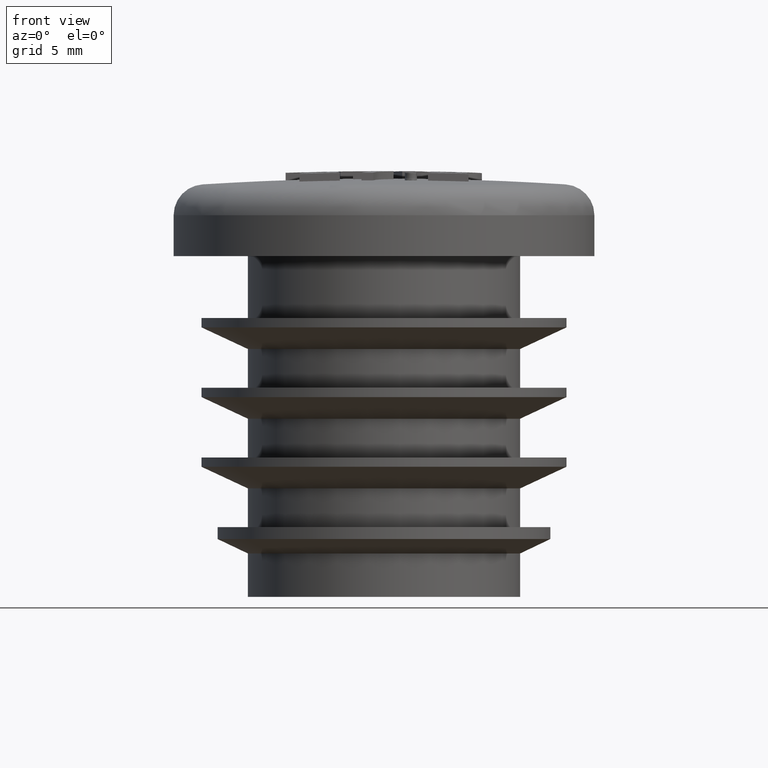
[diagram: clean part render]
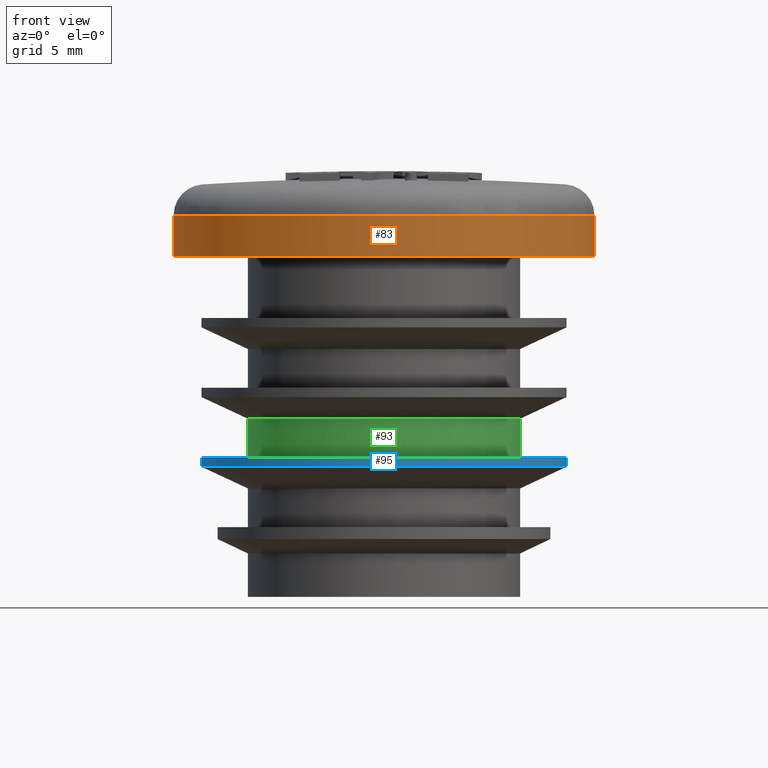
[diagram: same view with three faces highlighted in distinct colors, each labeled with its STEP entity id]
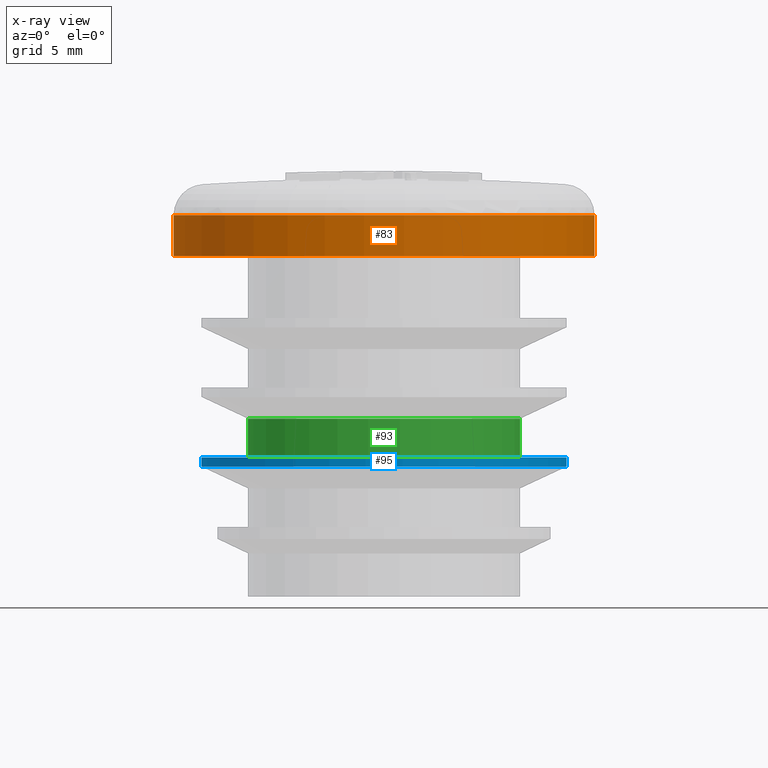
[diagram: x-ray of the same camera — body ghosted, the three highlighted faces saturated]
A machine part, front view with three faces highlighted in distinct colors.
The next image is the same camera in x-ray (body ghosted, the three faces saturated) — at least one of them is partly hidden behind the body in this view.
Their STEP definitions:

[orange] entity #83 — the highlighted cylindrical surface (bore or boss wall) has radius 13.6 mm, axis along (0, 0, 1).
#83 = ADVANCED_FACE( '', ( #185, #186 ), #187, .T. );
#185 = FACE_OUTER_BOUND( '', #439, .T. );
#186 = FACE_OUTER_BOUND( '', #440, .T. );
#187 = CYLINDRICAL_SURFACE( '', #441, 13.6000000000000 );
#439 = EDGE_LOOP( '', ( #888 ) );
#440 = EDGE_LOOP( '', ( #889 ) );
#441 = AXIS2_PLACEMENT_3D( '', #890, #891, #892 );
#888 = ORIENTED_EDGE( '', *, *, #1470, .F. );
#889 = ORIENTED_EDGE( '', *, *, #1469, .T. );
#890 = CARTESIAN_POINT( '', ( 0.000000000000000, 0.000000000000000, 22.0000000000000 ) );
#891 = DIRECTION( '', ( 0.000000000000000, 6.12303176911189E-017, 1.00000000000000 ) );
#892 = DIRECTION( '', ( 0.000000000000000, 1.00000000000000, -6.12303176911189E-017 ) );
#1469 = EDGE_CURVE( '', #1690, #1690, #1691, .T. );
#1470 = EDGE_CURVE( '', #1692, #1692, #1693, .T. );
#1690 = VERTEX_POINT( '', #2368 );
#1691 = CIRCLE( '', #2369, 13.6000000000000 );
#1692 = VERTEX_POINT( '', #2370 );
#1693 = CIRCLE( '', #2371, 13.6000000000000 );
#2368 = CARTESIAN_POINT( '', ( 0.000000000000000, 13.6000000000000, 24.6341279940551 ) );
#2369 = AXIS2_PLACEMENT_3D( '', #2940, #2941, #2942 );
#2370 = CARTESIAN_POINT( '', ( 0.000000000000000, 13.6000000000000, 22.0000000000000 ) );
#2371 = AXIS2_PLACEMENT_3D( '', #2943, #2944, #2945 );
#2940 = CARTESIAN_POINT( '', ( 0.000000000000000, 1.61288493915061E-016, 24.6341279940551 ) );
#2941 = DIRECTION( '', ( 0.000000000000000, -6.12303176911189E-017, -1.00000000000000 ) );
#2942 = DIRECTION( '', ( 0.000000000000000, 1.00000000000000, -6.12303176911189E-017 ) );
#2943 = CARTESIAN_POINT( '', ( 0.000000000000000, -2.92098591235830E-031, 22.0000000000000 ) );
#2944 = DIRECTION( '', ( 0.000000000000000, -6.12303176911189E-017, -1.00000000000000 ) );
#2945 = DIRECTION( '', ( 0.000000000000000, 1.00000000000000, -6.12303176911189E-017 ) );

[blue] entity #95 — the highlighted cylindrical surface (bore or boss wall) has radius 11.8 mm, axis along (0, 0, 1).
#95 = ADVANCED_FACE( '', ( #221, #222 ), #223, .T. );
#221 = FACE_OUTER_BOUND( '', #475, .T. );
#222 = FACE_OUTER_BOUND( '', #476, .T. );
#223 = CYLINDRICAL_SURFACE( '', #477, 11.8000000000000 );
#475 = EDGE_LOOP( '', ( #948 ) );
#476 = EDGE_LOOP( '', ( #949 ) );
#477 = AXIS2_PLACEMENT_3D( '', #950, #951, #952 );
#948 = ORIENTED_EDGE( '', *, *, #1482, .F. );
#949 = ORIENTED_EDGE( '', *, *, #1481, .T. );
#950 = CARTESIAN_POINT( '', ( 0.000000000000000, 0.000000000000000, 22.0000000000000 ) );
#951 = DIRECTION( '', ( 0.000000000000000, 6.12303176911189E-017, 1.00000000000000 ) );
#952 = DIRECTION( '', ( 0.000000000000000, 1.00000000000000, -6.12303176911189E-017 ) );
#1481 = EDGE_CURVE( '', #1714, #1714, #1715, .T. );
#1482 = EDGE_CURVE( '', #1716, #1716, #1717, .T. );
#1714 = VERTEX_POINT( '', #2392 );
#1715 = CIRCLE( '', #2393, 11.8000000000000 );
#1716 = VERTEX_POINT( '', #2394 );
#1717 = CIRCLE( '', #2395, 11.8000000000000 );
#2392 = CARTESIAN_POINT( '', ( 0.000000000000000, 11.8000000000000, 9.00000000000000 ) );
#2393 = AXIS2_PLACEMENT_3D( '', #2976, #2977, #2978 );
#2394 = CARTESIAN_POINT( '', ( 0.000000000000000, 11.8000000000000, 8.39892297446498 ) );
#2395 = AXIS2_PLACEMENT_3D( '', #2979, #2980, #2981 );
#2976 = CARTESIAN_POINT( '', ( 0.000000000000000, -7.95994129984545E-016, 9.00000000000000 ) );
#2977 = DIRECTION( '', ( 0.000000000000000, -6.12303176911189E-017, -1.00000000000000 ) );
#2978 = DIRECTION( '', ( 0.000000000000000, 1.00000000000000, -6.12303176911189E-017 ) );
#2979 = CARTESIAN_POINT( '', ( 0.000000000000000, -8.32798267214887E-016, 8.39892297446498 ) );
#2980 = DIRECTION( '', ( 0.000000000000000, -6.12303176911189E-017, -1.00000000000000 ) );
#2981 = DIRECTION( '', ( 0.000000000000000, 1.00000000000000, -6.12303176911189E-017 ) );

[green] entity #93 — the highlighted cylindrical surface (bore or boss wall) has radius 8.8 mm, axis along (0, 0, 1).
#93 = ADVANCED_FACE( '', ( #215, #216 ), #217, .T. );
#215 = FACE_OUTER_BOUND( '', #469, .T. );
#216 = FACE_OUTER_BOUND( '', #470, .T. );
#217 = CYLINDRICAL_SURFACE( '', #471, 8.80000000000000 );
#469 = EDGE_LOOP( '', ( #938 ) );
#470 = EDGE_LOOP( '', ( #939 ) );
#471 = AXIS2_PLACEMENT_3D( '', #940, #941, #942 );
#938 = ORIENTED_EDGE( '', *, *, #1480, .F. );
#939 = ORIENTED_EDGE( '', *, *, #1479, .T. );
#940 = CARTESIAN_POINT( '', ( 0.000000000000000, 0.000000000000000, 22.0000000000000 ) );
#941 = DIRECTION( '', ( 0.000000000000000, 6.12303176911189E-017, 1.00000000000000 ) );
#942 = DIRECTION( '', ( 0.000000000000000, 1.00000000000000, -6.12303176911189E-017 ) );
#1479 = EDGE_CURVE( '', #1710, #1710, #1711, .T. );
#1480 = EDGE_CURVE( '', #1712, #1712, #1713, .T. );
#1710 = VERTEX_POINT( '', #2388 );
#1711 = CIRCLE( '', #2389, 8.80000000000000 );
#1712 = VERTEX_POINT( '', #2390 );
#1713 = CIRCLE( '', #2391, 8.80000000000000 );
#2388 = CARTESIAN_POINT( '', ( 0.000000000000000, 8.80000000000000, 11.5000000000000 ) );
#2389 = AXIS2_PLACEMENT_3D( '', #2970, #2971, #2972 );
#2390 = CARTESIAN_POINT( '', ( 0.000000000000000, 8.80000000000000, 9.00000000000000 ) );
#2391 = AXIS2_PLACEMENT_3D( '', #2973, #2974, #2975 );
#2970 = CARTESIAN_POINT( '', ( 0.000000000000000, -6.42918335756747E-016, 11.5000000000000 ) );
#2971 = DIRECTION( '', ( 0.000000000000000, -6.12303176911189E-017, -1.00000000000000 ) );
#2972 = DIRECTION( '', ( 0.000000000000000, 1.00000000000000, -6.12303176911189E-017 ) );
#2973 = CARTESIAN_POINT( '', ( 0.000000000000000, -7.95994129984545E-016, 9.00000000000000 ) );
#2974 = DIRECTION( '', ( 0.000000000000000, -6.12303176911189E-017, -1.00000000000000 ) );
#2975 = DIRECTION( '', ( 0.000000000000000, 1.00000000000000, -6.12303176911189E-017 ) );